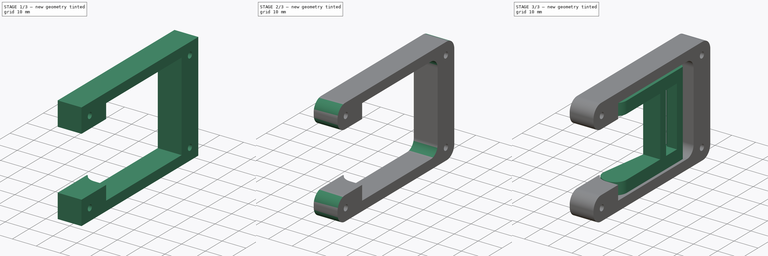
[diagram: build sequence overview — one tinted view per stage of 3, left to right]
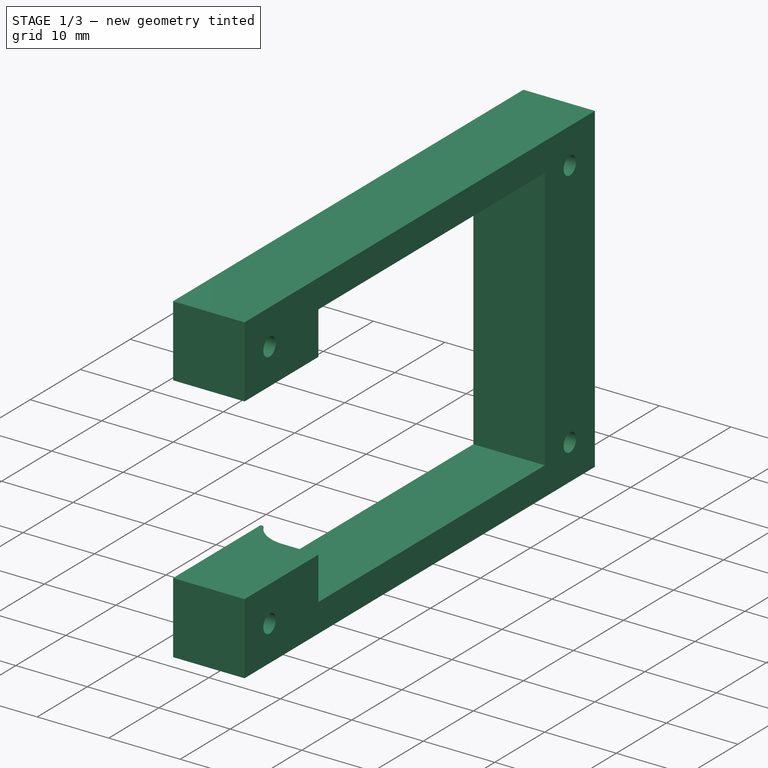
[diagram: stage 1 of 3 — iso view after this stage's code; geometry added in this stage tinted green]
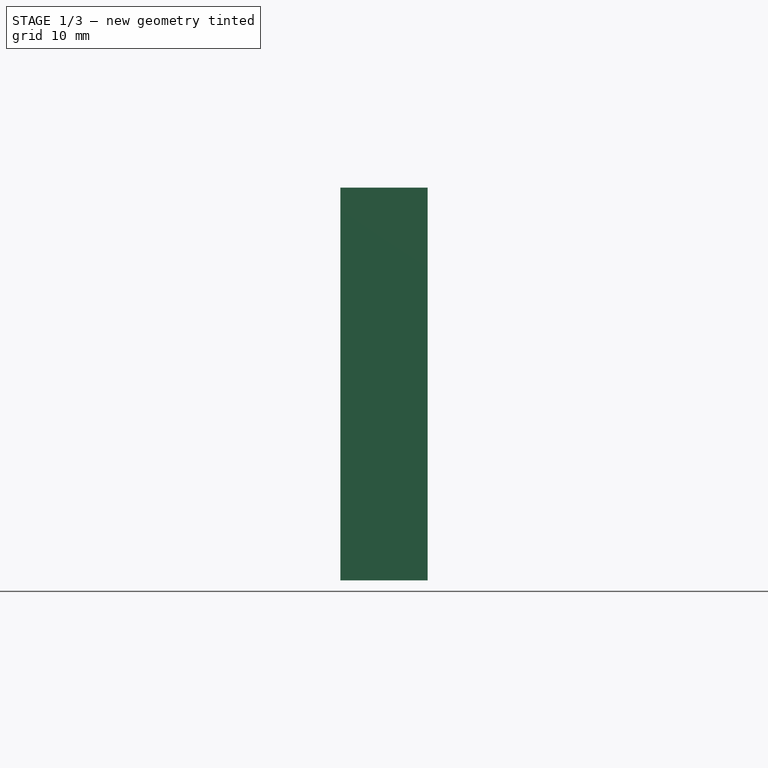
[diagram: stage 1 of 3 — front view after this stage's code; geometry added in this stage tinted green]
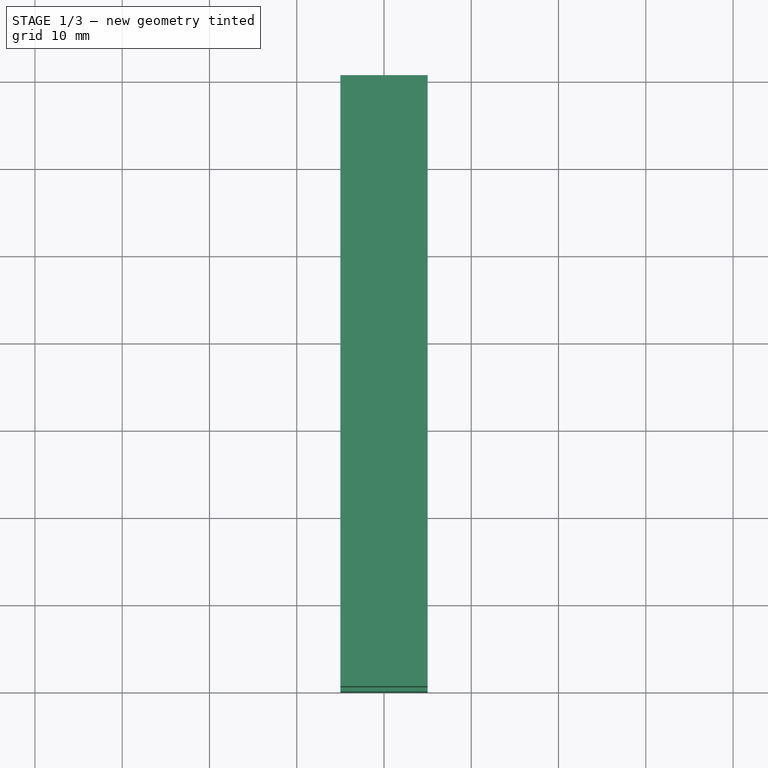
[diagram: stage 1 of 3 — top view after this stage's code; geometry added in this stage tinted green]
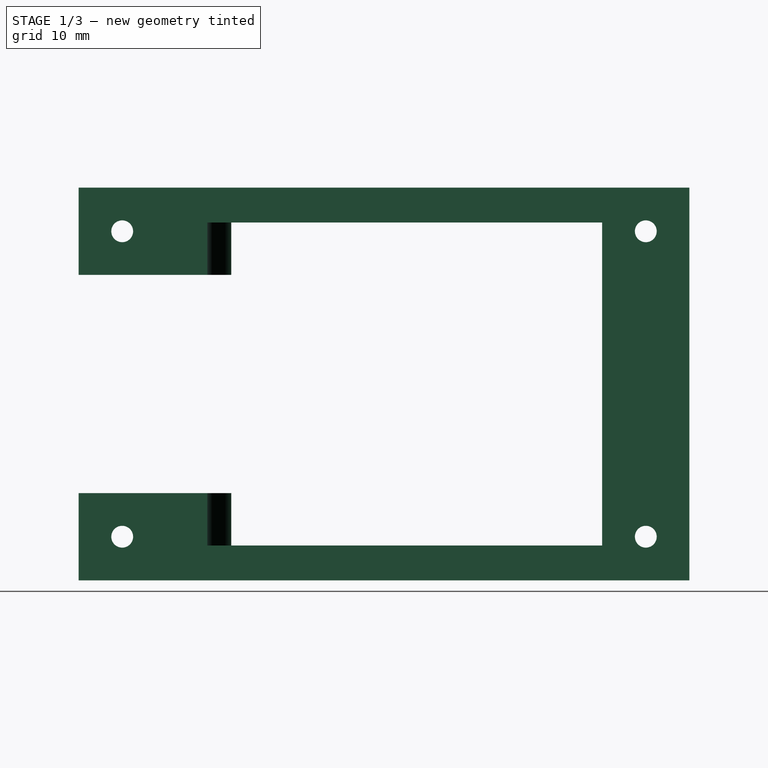
[diagram: stage 1 of 3 — right view after this stage's code; geometry added in this stage tinted green]
FCSTD DOCUMENT  (FreeCAD 0.18R16110 (Git))
Label: sanding_latch
License: All rights reserved
LicenseURL: http://en.wikipedia.org/wiki/All_rights_reserved
objects: Sketcher::SketchObject×5, PartDesign::Pad×2, PartDesign::Pocket×2, PartDesign::Body×2, PartDesign::Fillet×2, PartDesign::Hole×1, PartDesign::Chamfer×1
note: 20 computed .brp shape members not serialized (recipe doc carries the construction recipe); baked Part::Feature solids carry a one-line shape summary decoded from their .brp

FEATURE [Sketcher::SketchObject] Sketch002
  MapMode = 5
  Placement = pos=(0,0,0) rot=(0.57735,0.57735,0.57735;2.0944rad)
  Support = -> [YZ_Plane001]
  sketch-geometry (14):
    g0: LineSegment StartX=0 StartY=12.5 StartZ=0 EndX=-20 EndY=12.5 EndZ=0
    g1: LineSegment StartX=-20 StartY=12.5 StartZ=0 EndX=-20 EndY=22.5 EndZ=0
    g2: LineSegment StartX=-20 StartY=22.5 StartZ=0 EndX=50 EndY=22.5 EndZ=0
    g3: LineSegment StartX=50 StartY=22.5 StartZ=0 EndX=50 EndY=-22.5 EndZ=0
    g4: LineSegment StartX=50 StartY=-22.5 StartZ=0 EndX=-20 EndY=-22.5 EndZ=0
    g5: LineSegment StartX=-20 StartY=-22.5 StartZ=0 EndX=-20 EndY=-12.5 EndZ=0
    g6: LineSegment StartX=-20 StartY=-12.5 StartZ=0 EndX=0 EndY=-12.5 EndZ=0
    g7: LineSegment StartX=0 StartY=-12.5 StartZ=0 EndX=0 EndY=-18.5 EndZ=0
    g8: LineSegment StartX=0 StartY=-18.5 StartZ=0 EndX=40 EndY=-18.5 EndZ=0
    g9: LineSegment StartX=40 StartY=-18.5 StartZ=0 EndX=40 EndY=18.5 EndZ=0
    g10: LineSegment StartX=40 StartY=18.5 StartZ=0 EndX=0 EndY=18.5 EndZ=0
    g11: LineSegment StartX=0 StartY=18.5 StartZ=0 EndX=0 EndY=12.5 EndZ=0
    g12: LineSegment [constr] StartX=0 StartY=0 StartZ=0 EndX=40 EndY=18.5 EndZ=0
    g13: LineSegment [constr] StartX=0 StartY=0 StartZ=0 EndX=40 EndY=-18.5 EndZ=0
  constraints (42):
    c: PointOnObject(g0,g-2)
    c: Horizontal(g0)
    c: Coincident(g0,g1)
    c: Vertical(g1)
    c: Coincident(g1,g2)
    c: Horizontal(g2)
    c: Coincident(g2,g3)
    c: Vertical(g3)
    c: Coincident(g3,g4)
    c: Horizontal(g4)
    c: Coincident(g4,g5)
    c: Vertical(g5)
    c: Coincident(g5,g6)
    c: Horizontal(g6)
    c: Coincident(g6,g7)
    c: PointOnObject(g6,g-2)
    c: PointOnObject(g7,g-2)
    c: Coincident(g8,g7)
    c: Horizontal(g8)
    c: Coincident(g9,g8)
    c: Vertical(g9)
    c: Coincident(g10,g9)
    c: Horizontal(g10)
    c: Coincident(g11,g10)
    c: Coincident(g11,g0)
    c: PointOnObject(g10,g-2)
    c: DistanceY(g5,g-1) = 12.5
    c: DistanceX(g6,g6) = 20
    c: Equal(g6,g0)
    c: Equal(g5,g1)
    c: DistanceY(g5,g5) = 10
    c: DistanceY(g7,g7) = 6
    c: DistanceX(g8,g8) = 40
    c: Coincident(g12,g-1)
    c: Coincident(g13,g-1)
    c: Coincident(g13,g8)
    c: Coincident(g12,g9)
    c: Equal(g12,g13)
    c: Equal(g11,g7)
    c: Equal(g0,g6)
    c: Equal(g1,g5)
    c: DistanceX(g-1,g2) = 50
FEATURE [PartDesign::Pad] Pad001
  Length = 10
  Length2 = 100
  Midplane = true
  Placement = pos=(0,0,0) rot=(0.57735,0.57735,0.57735;2.0944rad)
  Profile = -> Sketch002
  Type = 0
FEATURE [Sketcher::SketchObject] Sketch003
  MapMode = 5
  Support = -> [XY_Plane001]
  sketch-geometry (8):
    g0: ArcOfCircle CenterX=0 CenterY=0 CenterZ=0 NormalX=0 NormalY=0 NormalZ=1 AngleXU=0 Radius=5.25 StartAngle=3.63791 EndAngle=4.71239
    g1: LineSegment StartX=5 StartY=-5.25 StartZ=0 EndX=5 EndY=5 EndZ=0
    g2: LineSegment StartX=5 StartY=5 StartZ=0 EndX=-5 EndY=5 EndZ=0
    g3: LineSegment StartX=-5 StartY=5 StartZ=0 EndX=-5 EndY=-2.5 EndZ=0
    g4: LineSegment StartX=-5 StartY=-2.5 StartZ=0 EndX=-4.61655 EndY=-2.5 EndZ=0
    g5: LineSegment StartX=5 StartY=-5.25 StartZ=0 EndX=-9e-16 EndY=-5.25 EndZ=0
    g6: LineSegment [constr] StartX=-5 StartY=5 StartZ=0 EndX=0 EndY=0 EndZ=0
    g7: LineSegment [constr] StartX=0 StartY=0 StartZ=0 EndX=5 EndY=5 EndZ=0
  constraints (21):
    c: Coincident(g0,g-1)
    c: Vertical(g1)
    c: Coincident(g1,g2)
    c: Horizontal(g2)
    c: Coincident(g2,g3)
    c: Vertical(g3)
    c: Coincident(g3,g4)
    c: Coincident(g4,g0)
    c: Horizontal(g4)
    c: DistanceX(g2,g2) = 10
    c: Radius(g0) = 5.25
    c: DistanceY(g3,g0) = 2.5
    c: DistanceY(g0,g2) = 5
    c: Coincident(g1,g5)
    c: Horizontal(g5)
    c: Tangent(g5,g0) = 1.5708
    c: Coincident(g6,g2)
    c: Coincident(g6,g0)
    c: Coincident(g7,g0)
    c: Coincident(g7,g1)
    c: Equal(g7,g6)
FEATURE [PartDesign::Pocket] Pocket001
  BaseFeature = -> Pad001
  Length = 37
  Length2 = 100
  Midplane = true
  Placement = pos=(0,0,0) rot=(0.57735,0.57735,0.57735;2.0944rad)
  Profile = -> Sketch003
  Refine = true
  Type = 0
FEATURE [Sketcher::SketchObject] Sketch004
  MapMode = 5
  Placement = pos=(-5,3.3e-15,-2.2e-15) rot=(-0.57735,-0.57735,0.57735;2.0944rad)
  Support = -> [Pocket001]
  sketch-geometry (10):
    g0: LineSegment [constr] StartX=-15 StartY=17.5 StartZ=0 EndX=45 EndY=17.5 EndZ=0
    g1: LineSegment [constr] StartX=45 StartY=17.5 StartZ=0 EndX=45 EndY=-17.5 EndZ=0
    g2: LineSegment [constr] StartX=45 StartY=-17.5 StartZ=0 EndX=-15 EndY=-17.5 EndZ=0
    g3: LineSegment [constr] StartX=-15 StartY=-17.5 StartZ=0 EndX=-15 EndY=17.5 EndZ=0
    g4: LineSegment [constr] StartX=0 StartY=0 StartZ=0 EndX=-15 EndY=17.5 EndZ=0
    g5: LineSegment [constr] StartX=0 StartY=0 StartZ=0 EndX=-15 EndY=-17.5 EndZ=0
    g6: Circle CenterX=45 CenterY=17.5 CenterZ=0 NormalX=0 NormalY=0 NormalZ=1 AngleXU=0 Radius=1.1
    g7: Circle CenterX=45 CenterY=-17.5 CenterZ=0 NormalX=0 NormalY=0 NormalZ=1 AngleXU=0 Radius=1.1
    g8: Circle CenterX=-15 CenterY=17.5 CenterZ=0 NormalX=0 NormalY=0 NormalZ=1 AngleXU=0 Radius=1.1
    g9: Circle CenterX=-15 CenterY=-17.5 CenterZ=0 NormalX=0 NormalY=0 NormalZ=1 AngleXU=0 Radius=1.1
  constraints (24):
    c: Coincident(g0,g1)
    c: Coincident(g1,g2)
    c: Coincident(g2,g3)
    c: Coincident(g3,g0)
    c: Horizontal(g0)
    c: Horizontal(g2)
    c: Vertical(g1)
    c: Vertical(g3)
    c: Coincident(g4,g-1)
    c: Coincident(g4,g0)
    c: Coincident(g5,g-1)
    c: Coincident(g5,g2)
    c: Equal(g5,g4)
    c: DistanceX(g0,g-1) = 15
    c: DistanceY(g3,g3) = 35
    c: DistanceX(g-1,g0) = 45
    c: Coincident(g6,g0)
    c: Coincident(g7,g1)
    c: Coincident(g8,g0)
    c: Coincident(g9,g2)
    c: Radius(g9) = 1.1
    c: Equal(g9,g7)
    c: Equal(g9,g6)
    c: Equal(g9,g8)
FEATURE [PartDesign::Hole] Hole
  BaseFeature = -> Pocket001
  Depth = 25
  DepthType = 0
  Diameter = 2.5
  DrillPoint = 0
  DrillPointAngle = 118
  HoleCutCountersinkAngle = 90
  HoleCutDepth = 0
  HoleCutDiameter = 5
  HoleCutType = 2
  ModelActualThread = false
  Placement = pos=(0,0,0) rot=(0.57735,0.57735,0.57735;2.0944rad)
  Profile = -> Sketch004
  Tapered = false
  TaperedAngle = 90
  ThreadAngle = 0
  ThreadClass = 0
  ThreadCutOffInner = 0
  ThreadCutOffOuter = 0
  ThreadDirection = 0
  ThreadFit = 0
  ThreadPitch = 0
  ThreadSize = 0
  ThreadType = 0
  Threaded = false
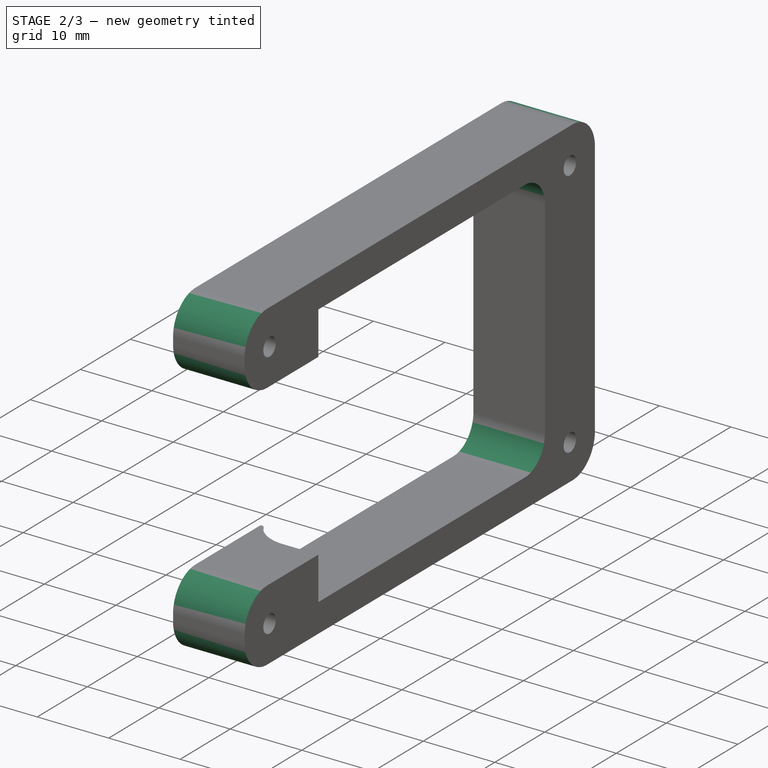
[diagram: stage 2 of 3 — iso view after this stage's code; geometry added in this stage tinted green]
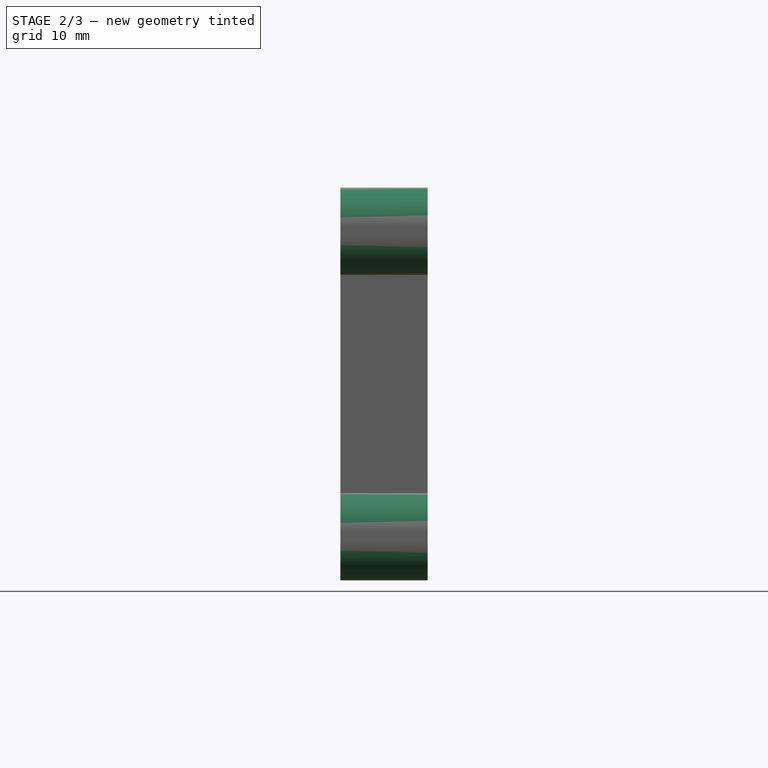
[diagram: stage 2 of 3 — front view after this stage's code; geometry added in this stage tinted green]
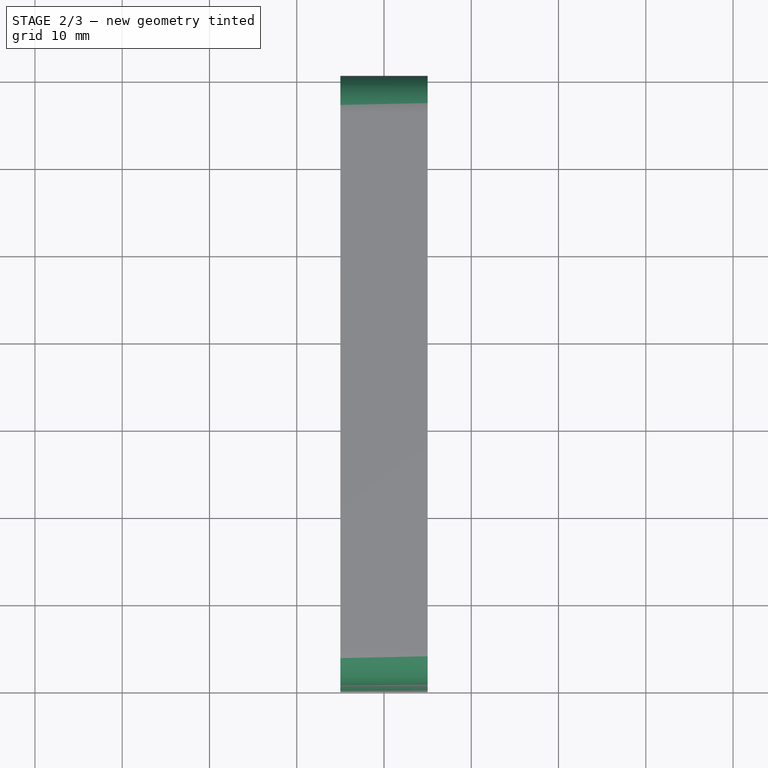
[diagram: stage 2 of 3 — top view after this stage's code; geometry added in this stage tinted green]
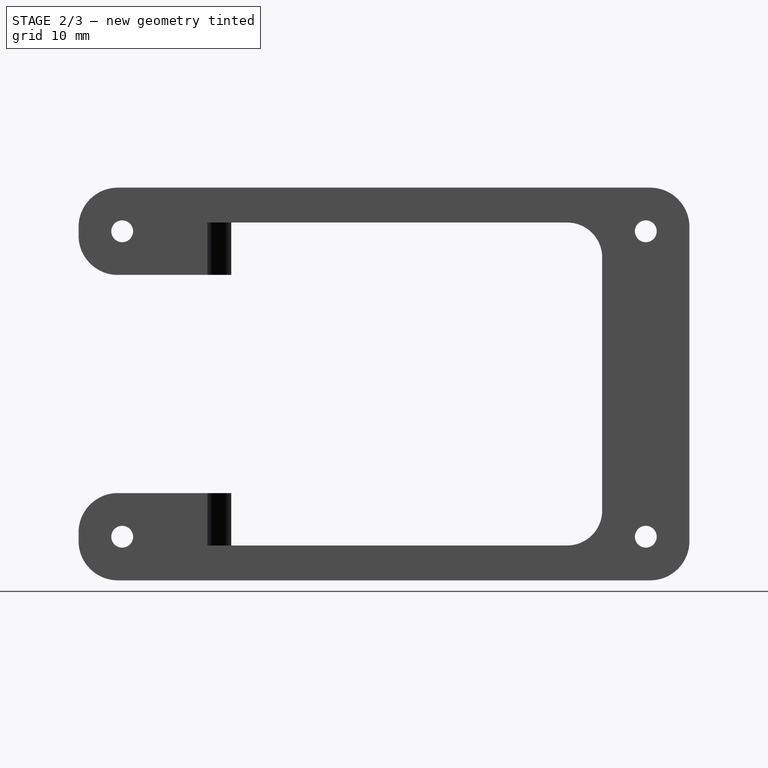
[diagram: stage 2 of 3 — right view after this stage's code; geometry added in this stage tinted green]
FEATURE [PartDesign::Body] Body
  Group = -> [Sketch,Pad,Sketch001,Pocket,Chamfer]
  Origin = -> Origin
  Tip = -> Chamfer
FEATURE [PartDesign::Fillet] Fillet
  Base = -> Hole [Edge55,Edge54,Edge2,Edge22,Edge48,Edge51]
  BaseFeature = -> Hole
  Placement = pos=(0,0,0) rot=(0.57735,0.57735,0.57735;2.0944rad)
  Radius = 4.5
FEATURE [PartDesign::Fillet] Fillet001
  Base = -> Fillet [Edge58,Edge56]
  BaseFeature = -> Fillet
  Placement = pos=(0,0,0) rot=(0.57735,0.57735,0.57735;2.0944rad)
  Radius = 4
FEATURE [PartDesign::Body] Body001
  Group = -> [Sketch002,Pad001,Sketch003,Pocket001,Sketch004,Hole,Fillet,Fillet001]
  Origin = -> Origin001
  Tip = -> Fillet001
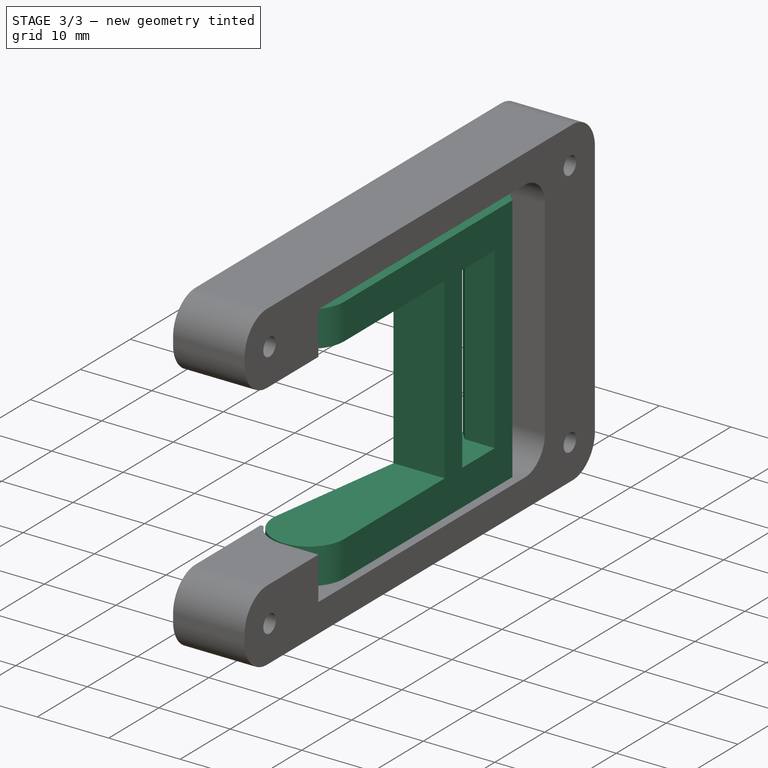
[diagram: stage 3 of 3 — iso view after this stage's code; geometry added in this stage tinted green]
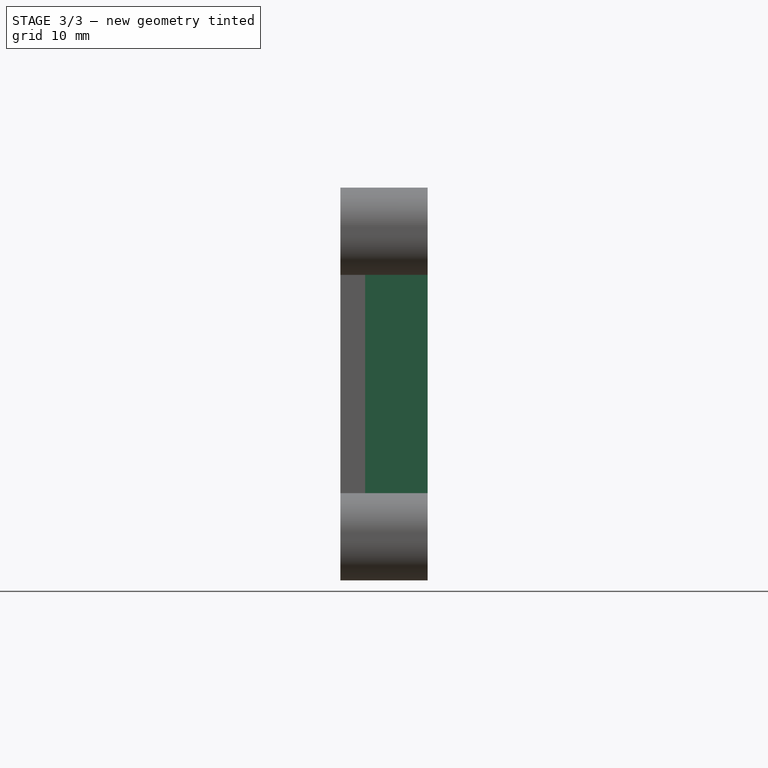
[diagram: stage 3 of 3 — front view after this stage's code; geometry added in this stage tinted green]
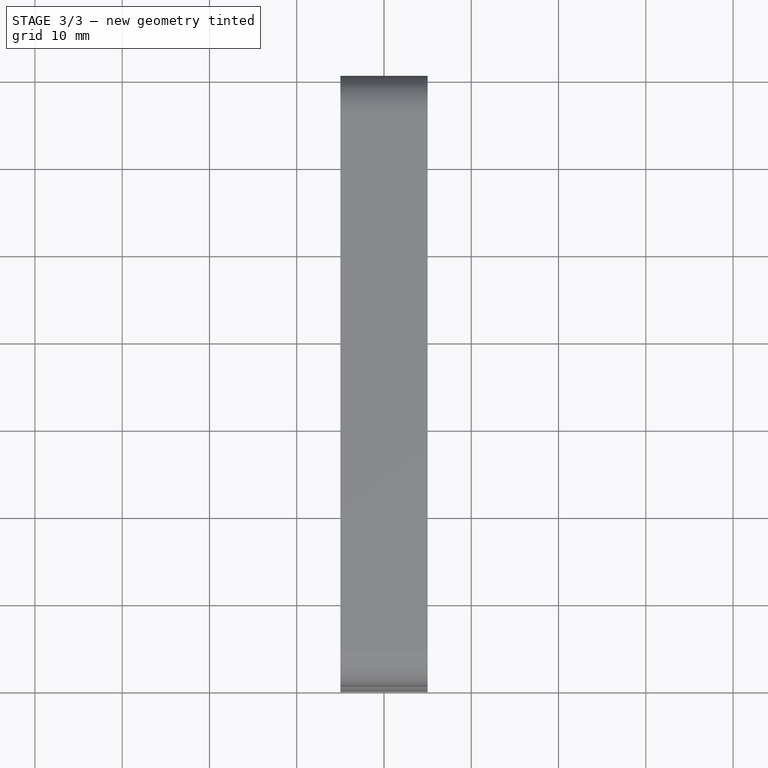
[diagram: stage 3 of 3 — top view after this stage's code; geometry added in this stage tinted green]
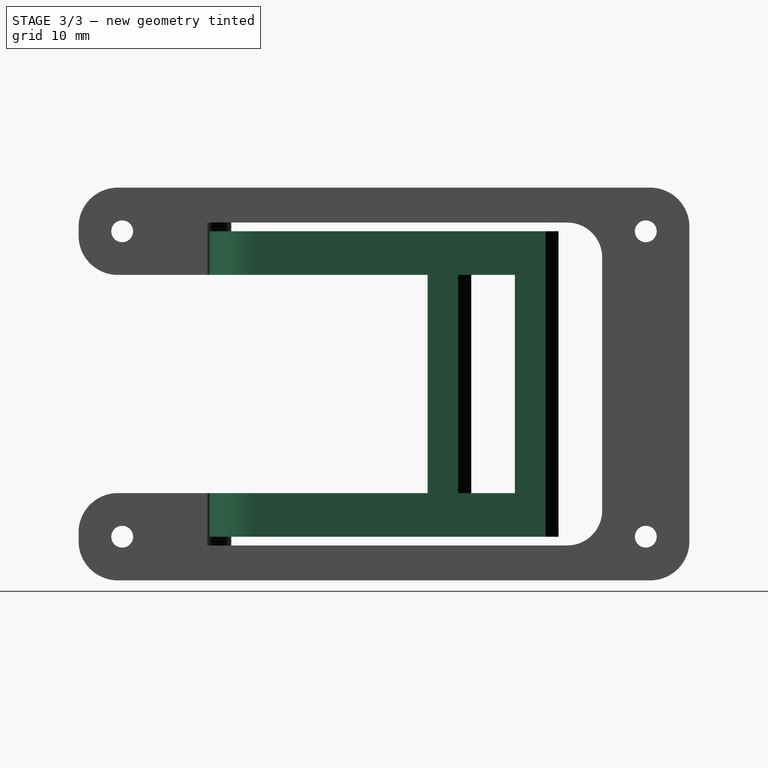
[diagram: stage 3 of 3 — right view after this stage's code; geometry added in this stage tinted green]
FEATURE [Sketcher::SketchObject] Sketch
  MapMode = 5
  Support = -> [XY_Plane]
  sketch-geometry (5):
    g0: Circle [constr] CenterX=0 CenterY=0 CenterZ=0 NormalX=0 NormalY=0 NormalZ=1 AngleXU=0 Radius=2.5
    g1: LineSegment StartX=5 StartY=-1.2e-15 StartZ=0 EndX=5 EndY=35 EndZ=0
    g2: LineSegment StartX=5 StartY=35 StartZ=0 EndX=0 EndY=35 EndZ=0
    g3: LineSegment StartX=0 StartY=35 StartZ=0 EndX=-4.94872 EndY=0.714286 EndZ=0
    g4: ArcOfCircle CenterX=0 CenterY=0 CenterZ=0 NormalX=0 NormalY=0 NormalZ=1 AngleXU=0 Radius=5 StartAngle=2.99825 EndAngle=6.28319
  constraints (13):
    c: Coincident(g0,g-1)
    c: Radius(g0) = 2.5
    c: PointOnObject(g1,g-1)
    c: Vertical(g1)
    c: DistanceX(g0,g1) = 5
    c: DistanceY(g1,g1) = 35
    c: Coincident(g2,g1)
    c: PointOnObject(g2,g-2)
    c: Horizontal(g2)
    c: Coincident(g3,g2)
    c: Coincident(g4,g0)
    c: Coincident(g4,g1)
    c: Tangent(g4,g3) = -1.5708
FEATURE [PartDesign::Pad] Pad
  Length = 35
  Length2 = 100
  Midplane = true
  Profile = -> Sketch
  Type = 0
FEATURE [Sketcher::SketchObject] Sketch001
  MapMode = 5
  Placement = pos=(5,0,0) rot=(0.57735,0.57735,0.57735;2.0944rad)
  Support = -> [Pad]
  sketch-geometry (11):
    g0: LineSegment StartX=-20 StartY=12.5 StartZ=0 EndX=-20 EndY=-12.5 EndZ=0
    g1: LineSegment StartX=-20 StartY=-12.5 StartZ=0 EndX=20 EndY=-12.5 EndZ=0
    g2: LineSegment StartX=20 StartY=-12.5 StartZ=0 EndX=20 EndY=12.5 EndZ=0
    g3: LineSegment StartX=20 StartY=12.5 StartZ=0 EndX=-20 EndY=12.5 EndZ=0
    g4: Circle [constr] CenterX=0 CenterY=0 CenterZ=0 NormalX=0 NormalY=0 NormalZ=1 AngleXU=0 Radius=23.585
    g5: LineSegment StartX=25 StartY=12.5 StartZ=0 EndX=30 EndY=12.5 EndZ=0
    g6: LineSegment StartX=30 StartY=12.5 StartZ=0 EndX=30 EndY=-12.5 EndZ=0
    g7: LineSegment StartX=30 StartY=-12.5 StartZ=0 EndX=25 EndY=-12.5 EndZ=0
    g8: LineSegment StartX=25 StartY=-12.5 StartZ=0 EndX=25 EndY=12.5 EndZ=0
    g9: LineSegment [constr] StartX=25 StartY=12.5 StartZ=0 EndX=20 EndY=12.5 EndZ=0
    g10: LineSegment [constr] StartX=20 StartY=-12.5 StartZ=0 EndX=25 EndY=-12.5 EndZ=0
  constraints (30):
    c: Coincident(g0,g1)
    c: Coincident(g1,g2)
    c: Coincident(g2,g3)
    c: Coincident(g3,g0)
    c: PointOnObject(g0,g4)
    c: PointOnObject(g1,g4)
    c: PointOnObject(g2,g4)
    c: PointOnObject(g3,g4)
    c: Coincident(g4,g-1)
    c: Horizontal(g3)
    c: Vertical(g2)
    c: Vertical(g0)
    c: DistanceX(g3,g3) = 40
    c: DistanceY(g0,g0) = 25
    c: Coincident(g5,g6)
    c: Coincident(g6,g7)
    c: Coincident(g7,g8)
    c: Coincident(g8,g5)
    c: Horizontal(g5)
    c: Horizontal(g7)
    c: Vertical(g6)
    c: Vertical(g8)
    c: Coincident(g9,g5)
    c: Coincident(g9,g2)
    c: Horizontal(g9)
    c: Coincident(g10,g1)
    c: Coincident(g10,g7)
    c: Horizontal(g10)
    c: Equal(g9,g5)
    c: DistanceX(g5,g5) = 5
FEATURE [PartDesign::Pocket] Pocket
  BaseFeature = -> Pad
  Length = 20
  Length2 = 100
  Midplane = true
  Profile = -> Sketch001
  Type = 0
FEATURE [PartDesign::Chamfer] Chamfer
  Base = -> Pocket [Edge11,Edge2,Edge16,Edge32]
  BaseFeature = -> Pocket
  Size = 1.5
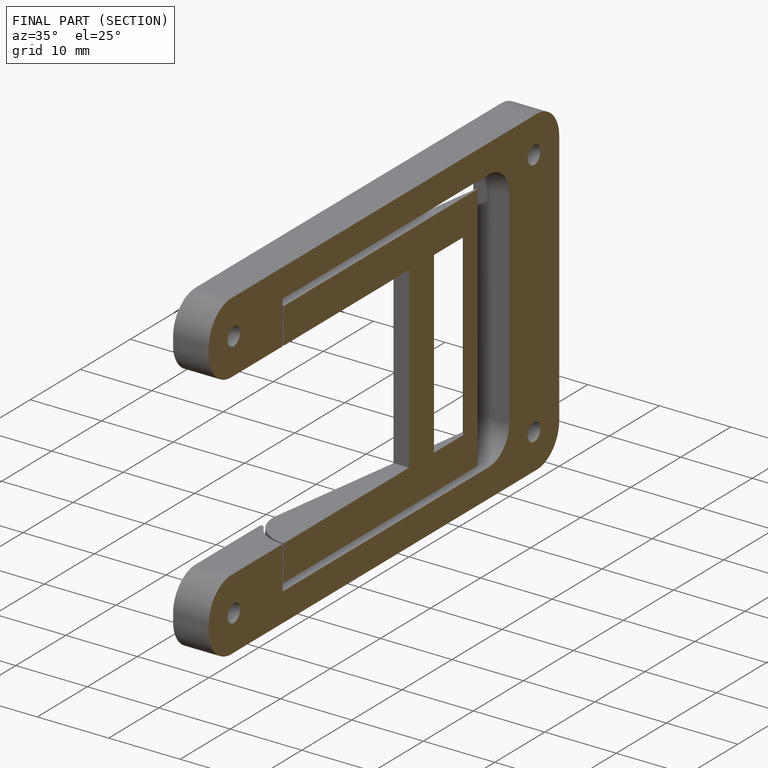
[diagram: finished part — half-section view (interior)]
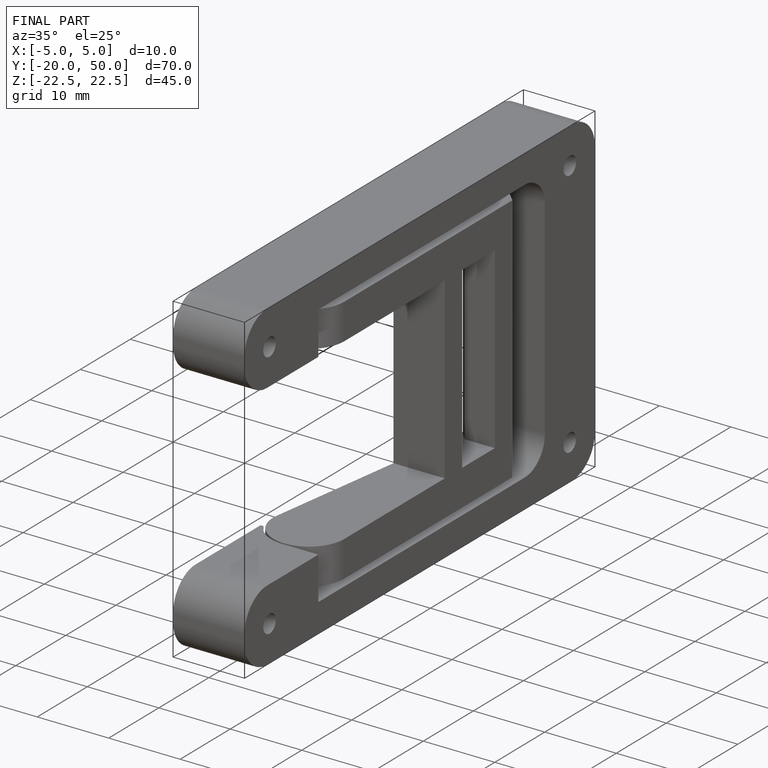
[diagram: finished part — iso view with bounding-box wireframe]
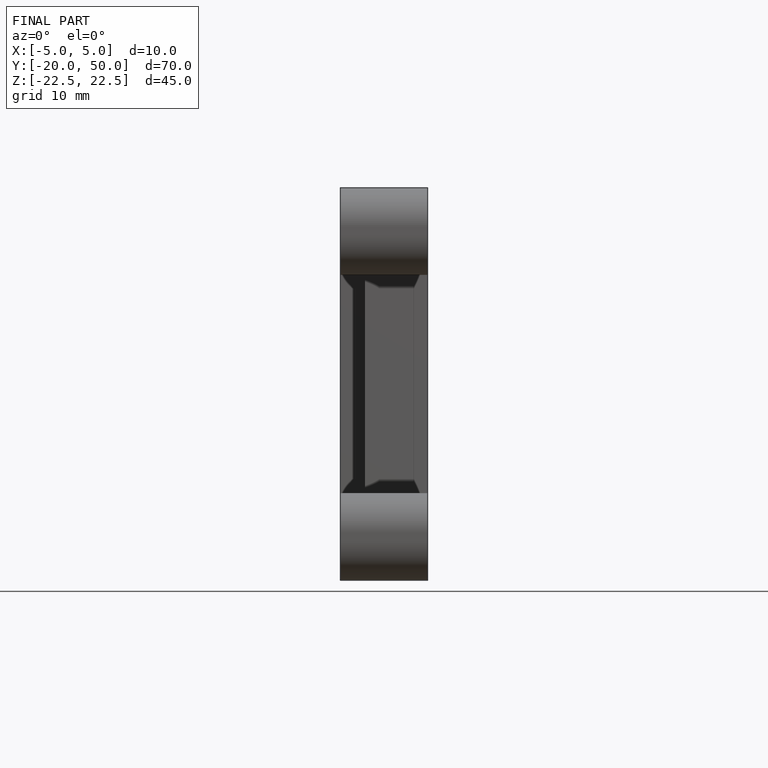
[diagram: finished part — front view with bounding-box wireframe]
